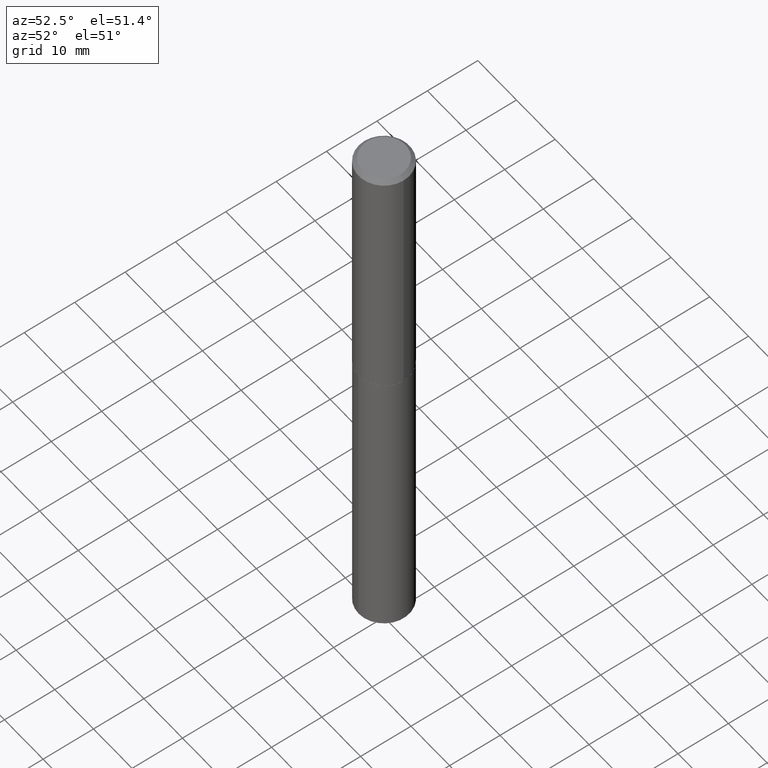
[diagram: clean part render]
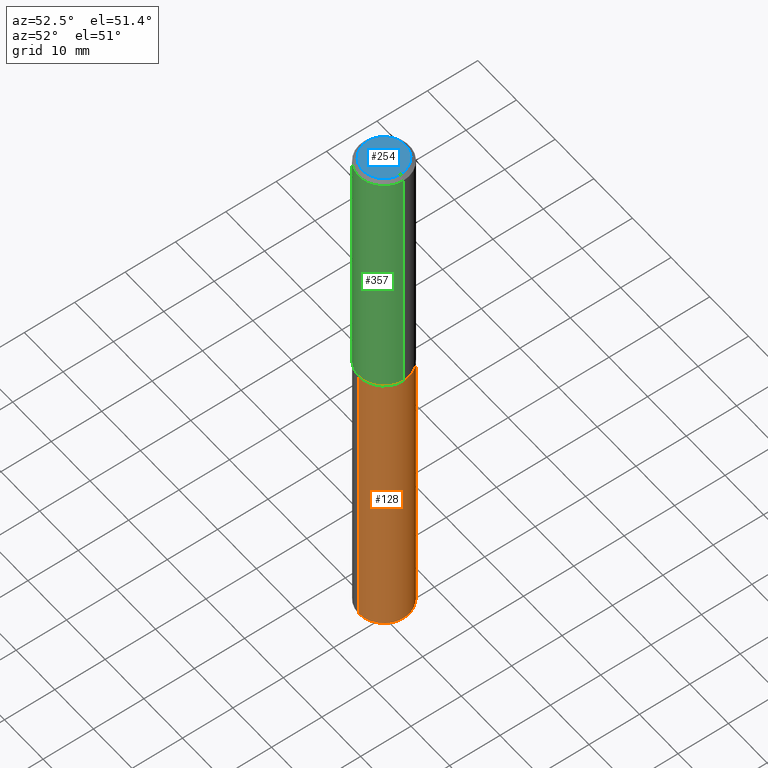
[diagram: same view with three faces highlighted in distinct colors, each labeled with its STEP entity id]
A machine part, auxiliary view with three faces highlighted in distinct colors.
Their STEP definitions:

[orange] entity #128 — the highlighted cylindrical surface (edge-blend (fillet) strip) has radius 5.0419 mm, axis along (-0, 0, 1).
#8 = CARTESIAN_POINT ( 'NONE',  ( -1.386118091520674425E-15, -0.1985000000000070874, -2.021999999999999797 ) ) ;
#12 = DIRECTION ( 'NONE',  ( -2.445399694485218143E-29, 3.491580310731022583E-15, 1.000000000000000000 ) ) ;
#16 = DIRECTION ( 'NONE',  ( -2.445399694485218423E-29, 3.491580310731022583E-15, 1.000000000000000000 ) ) ;
#31 = VERTEX_POINT ( 'NONE', #309 ) ;
#32 = ORIENTED_EDGE ( 'NONE', *, *, #225, .F. ) ;
#42 = EDGE_CURVE ( 'NONE', #31, #113, #121, .T. ) ;
#67 = CARTESIAN_POINT ( 'NONE',  ( 1.071277351076237585E-28, -1.529546758541459341E-14, -4.380729167123029733 ) ) ;
#68 = CARTESIAN_POINT ( 'NONE',  ( 4.944737926106347490E-29, -7.059775267140842055E-15, -2.022000000000000242 ) ) ;
#80 = CARTESIAN_POINT ( 'NONE',  ( -1.386118091520674425E-15, -0.1985000000000070874, -2.021999999999999797 ) ) ;
#91 = AXIS2_PLACEMENT_3D ( 'NONE', #67, #12, #280 ) ;
#93 = LINE ( 'NONE', #8, #385 ) ;
#96 = LINE ( 'NONE', #348, #351 ) ;
#102 = CARTESIAN_POINT ( 'NONE',  ( 1.410427330483906421E-15, 0.1984999999999929321, -2.022000000000001130 ) ) ;
#113 = VERTEX_POINT ( 'NONE', #314 ) ;
#116 = EDGE_LOOP ( 'NONE', ( #369, #198, #173, #32 ) ) ;
#121 = CIRCLE ( 'NONE', #91, 0.1985000000000000098 ) ;
#126 = DIRECTION ( 'NONE',  ( -2.445399694485218143E-29, 3.491580310731022583E-15, 1.000000000000000000 ) ) ;
#128 = ADVANCED_FACE ( 'NONE', ( #129 ), #149, .T. ) ;
#129 = FACE_OUTER_BOUND ( 'NONE', #116, .T. ) ;
#149 = CYLINDRICAL_SURFACE ( 'NONE', #241, 0.1985000000000000098 ) ;
#173 = ORIENTED_EDGE ( 'NONE', *, *, #178, .F. ) ;
#178 = EDGE_CURVE ( 'NONE', #263, #306, #295, .T. ) ;
#180 = EDGE_CURVE ( 'NONE', #113, #306, #96, .T. ) ;
#184 = DIRECTION ( 'NONE',  ( -2.445399694485218143E-29, 3.491580310731022583E-15, 1.000000000000000000 ) ) ;
#198 = ORIENTED_EDGE ( 'NONE', *, *, #180, .T. ) ;
#216 = DIRECTION ( 'NONE',  ( -2.445399694485218423E-29, 3.491580310731022583E-15, 1.000000000000000000 ) ) ;
#225 = EDGE_CURVE ( 'NONE', #31, #263, #93, .T. ) ;
#241 = AXIS2_PLACEMENT_3D ( 'NONE', #375, #184, #274 ) ;
#245 = DIRECTION ( 'NONE',  ( -6.982962677686265922E-15, -1.000000000000000000, 4.128737521910725011E-15 ) ) ;
#263 = VERTEX_POINT ( 'NONE', #80 ) ;
#274 = DIRECTION ( 'NONE',  ( -6.982962677686265922E-15, -1.000000000000000000, 4.128737521910725011E-15 ) ) ;
#275 = AXIS2_PLACEMENT_3D ( 'NONE', #68, #126, #245 ) ;
#280 = DIRECTION ( 'NONE',  ( -6.982962677686265922E-15, -1.000000000000000000, 2.752491681273816674E-15 ) ) ;
#295 = CIRCLE ( 'NONE', #275, 0.1985000000000000098 ) ;
#306 = VERTEX_POINT ( 'NONE', #102 ) ;
#309 = CARTESIAN_POINT ( 'NONE',  ( -1.386118091520616444E-15, -0.1985000000000152753, -4.380729167123028844 ) ) ;
#314 = CARTESIAN_POINT ( 'NONE',  ( 1.410427330483905632E-15, 0.1984999999999846887, -4.380729167123029733 ) ) ;
#348 = CARTESIAN_POINT ( 'NONE',  ( 1.410427330483848242E-15, 0.1984999999999929321, -2.022000000000001130 ) ) ;
#351 = VECTOR ( 'NONE', #216, 39.37007874015748143 ) ;
#369 = ORIENTED_EDGE ( 'NONE', *, *, #42, .T. ) ;
#375 = CARTESIAN_POINT ( 'NONE',  ( 4.944737926106347490E-29, -7.059775267140842055E-15, -2.022000000000000242 ) ) ;
#385 = VECTOR ( 'NONE', #16, 39.37007874015748143 ) ;

[blue] entity #254 — the highlighted planar face has unit normal (0, -0, -1).
#2 = VERTEX_POINT ( 'NONE', #85 ) ;
#44 = DIRECTION ( 'NONE',  ( -2.445468806185136597E-29, 3.491481338843145583E-15, 1.000000000000000000 ) ) ;
#50 = CARTESIAN_POINT ( 'NONE',  ( -4.791736873455011139E-48, 6.841330313435283607E-34, 1.959434878635801334E-19 ) ) ;
#52 = CIRCLE ( 'NONE', #253, 0.1672500000000000098 ) ;
#85 = CARTESIAN_POINT ( 'NONE',  ( -0.1672500000000000098, 1.222454903762451656E-15, 3.918869757188020196E-19 ) ) ;
#95 = DIRECTION ( 'NONE',  ( 1.000000000000000000, -6.982962677686267499E-15, 4.876176858485898441E-29 ) ) ;
#119 = EDGE_CURVE ( 'NONE', #140, #2, #197, .T. ) ;
#140 = VERTEX_POINT ( 'NONE', #182 ) ;
#145 = AXIS2_PLACEMENT_3D ( 'NONE', #50, #160, #256 ) ;
#160 = DIRECTION ( 'NONE',  ( 2.438088387897960049E-29, -3.491481338843145188E-15, -1.000000000000000000 ) ) ;
#161 = PLANE ( 'NONE',  #145 ) ;
#166 = EDGE_CURVE ( 'NONE', #2, #140, #52, .T. ) ;
#171 = ORIENTED_EDGE ( 'NONE', *, *, #166, .T. ) ;
#182 = CARTESIAN_POINT ( 'NONE',  ( 0.1672500000000000098, -1.309167967261893481E-15, 3.918869757358212700E-19 ) ) ;
#183 = CARTESIAN_POINT ( 'NONE',  ( -9.583473746910022278E-48, 1.368266062687056721E-33, 3.918869757271602667E-19 ) ) ;
#188 = DIRECTION ( 'NONE',  ( -2.445468806185136597E-29, 3.491481338843145583E-15, 1.000000000000000000 ) ) ;
#192 = AXIS2_PLACEMENT_3D ( 'NONE', #183, #44, #95 ) ;
#197 = CIRCLE ( 'NONE', #192, 0.1672500000000000098 ) ;
#213 = CARTESIAN_POINT ( 'NONE',  ( -9.583473746910022278E-48, 1.368266062687056721E-33, 3.918869757271602667E-19 ) ) ;
#230 = ORIENTED_EDGE ( 'NONE', *, *, #119, .T. ) ;
#253 = AXIS2_PLACEMENT_3D ( 'NONE', #213, #188, #271 ) ;
#254 = ADVANCED_FACE ( 'NONE', ( #258 ), #161, .F. ) ;
#256 = DIRECTION ( 'NONE',  ( -1.000000000000000000, 6.982962677686265922E-15, -4.876176775795935793E-29 ) ) ;
#258 = FACE_OUTER_BOUND ( 'NONE', #292, .T. ) ;
#271 = DIRECTION ( 'NONE',  ( 1.000000000000000000, -6.982962677686267499E-15, 4.876176858485898441E-29 ) ) ;
#292 = EDGE_LOOP ( 'NONE', ( #171, #230 ) ) ;

[green] entity #357 — the highlighted cylindrical surface (edge-blend (fillet) strip) has radius 5.0419 mm, axis along (-0, 0, 1).
#4 = CIRCLE ( 'NONE', #323, 0.1985000000000000098 ) ;
#5 = ORIENTED_EDGE ( 'NONE', *, *, #11, .F. ) ;
#6 = VERTEX_POINT ( 'NONE', #364 ) ;
#11 = EDGE_CURVE ( 'NONE', #6, #304, #38, .T. ) ;
#21 = DIRECTION ( 'NONE',  ( 1.000000000000000000, -6.982962677686266711E-15, 4.876176775795935232E-29 ) ) ;
#38 = LINE ( 'NONE', #118, #150 ) ;
#45 = CIRCLE ( 'NONE', #163, 0.1985000000000002873 ) ;
#46 = CARTESIAN_POINT ( 'NONE',  ( 0.1985000000000002873, -8.444147617992146450E-15, -2.021500000000000519 ) ) ;
#65 = ORIENTED_EDGE ( 'NONE', *, *, #273, .T. ) ;
#89 = ORIENTED_EDGE ( 'NONE', *, *, #368, .F. ) ;
#118 = CARTESIAN_POINT ( 'NONE',  ( -0.1985000000000001485, 1.410427330483799924E-15, -9.764086154155995580E-30 ) ) ;
#130 = DIRECTION ( 'NONE',  ( -2.445468806185136597E-29, 3.491481338843145583E-15, 1.000000000000000000 ) ) ;
#136 = EDGE_LOOP ( 'NONE', ( #5, #65, #143, #89 ) ) ;
#143 = ORIENTED_EDGE ( 'NONE', *, *, #220, .T. ) ;
#148 = DIRECTION ( 'NONE',  ( -2.445468806185136877E-29, 3.491481338843145188E-15, 1.000000000000000000 ) ) ;
#150 = VECTOR ( 'NONE', #201, 39.37007874015748143 ) ;
#162 = CYLINDRICAL_SURFACE ( 'NONE', #296, 0.1985000000000001485 ) ;
#163 = AXIS2_PLACEMENT_3D ( 'NONE', #191, #195, #285 ) ;
#172 = VECTOR ( 'NONE', #148, 39.37007874015748143 ) ;
#177 = VERTEX_POINT ( 'NONE', #343 ) ;
#191 = CARTESIAN_POINT ( 'NONE',  ( 4.943515191703255249E-29, -7.058029526471420552E-15, -2.021500000000000519 ) ) ;
#195 = DIRECTION ( 'NONE',  ( -2.445468806185136597E-29, 3.491481338843145583E-15, 1.000000000000000000 ) ) ;
#201 = DIRECTION ( 'NONE',  ( -2.445468806185136877E-29, 3.491481338843145188E-15, 1.000000000000000000 ) ) ;
#202 = VERTEX_POINT ( 'NONE', #46 ) ;
#210 = LINE ( 'NONE', #308, #172 ) ;
#220 = EDGE_CURVE ( 'NONE', #202, #177, #210, .T. ) ;
#226 = CARTESIAN_POINT ( 'NONE',  ( -0.1985000000000000098, -2.173141828671334310E-15, -0.03125000000000020123 ) ) ;
#250 = DIRECTION ( 'NONE',  ( 1.000000000000000000, -6.982962677686265922E-15, 0.000000000000000000 ) ) ;
#273 = EDGE_CURVE ( 'NONE', #6, #202, #45, .T. ) ;
#285 = DIRECTION ( 'NONE',  ( 1.000000000000000000, -6.982962677686266711E-15, 0.000000000000000000 ) ) ;
#296 = AXIS2_PLACEMENT_3D ( 'NONE', #378, #130, #21 ) ;
#304 = VERTEX_POINT ( 'NONE', #226 ) ;
#308 = CARTESIAN_POINT ( 'NONE',  ( 0.1985000000000001485, -1.386118091520724912E-15, 9.679210899954938883E-30 ) ) ;
#323 = AXIS2_PLACEMENT_3D ( 'NONE', #324, #382, #250 ) ;
#324 = CARTESIAN_POINT ( 'NONE',  ( 7.642090019328601786E-31, -1.091087918388490144E-16, -0.03125000000000020123 ) ) ;
#343 = CARTESIAN_POINT ( 'NONE',  ( 0.1985000000000000098, -1.495226883359573027E-15, -0.03125000000000020123 ) ) ;
#349 = FACE_OUTER_BOUND ( 'NONE', #136, .T. ) ;
#357 = ADVANCED_FACE ( 'NONE', ( #349 ), #162, .T. ) ;
#364 = CARTESIAN_POINT ( 'NONE',  ( -0.1985000000000002873, -5.647602195987619247E-15, -2.021500000000000519 ) ) ;
#368 = EDGE_CURVE ( 'NONE', #304, #177, #4, .T. ) ;
#378 = CARTESIAN_POINT ( 'NONE',  ( 0.000000000000000000, 0.000000000000000000, 0.000000000000000000 ) ) ;
#382 = DIRECTION ( 'NONE',  ( -2.445468806185136597E-29, 3.491481338843145583E-15, 1.000000000000000000 ) ) ;